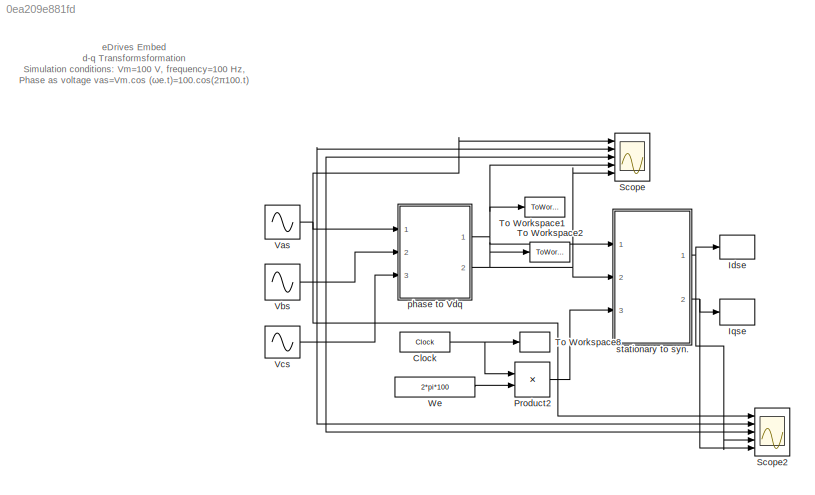
MODEL slx_0ea209e881fd
KIND model
CONFIG AbsTol = 1e-6
CONFIG EnableMultiTasking = off
CONFIG FixedStep = auto
CONFIG MaxStep = auto
CONFIG MinStep = auto
CONFIG RelTol = 1e-4
CONFIG SampleTimeConstraint = Unconstrained
CONFIG SolverName = ode45
CONFIG StartTime = 0.0
CONFIG StopTime = 0.015
BLOCK [Clock] Clock
  DisplayTime = on
BLOCK [ToWorkspace] Idse
  MaxDataPoints = inf
  Ports = [1]
  SampleTime = -1
  VariableName = Vde
BLOCK [ToWorkspace] Iqse
  MaxDataPoints = inf
  Ports = [1]
  SampleTime = -1
  VariableName = Vqe
BLOCK [Product] Product2
  InputSameDT = on
  OutDataTypeStr = Inherit: Same as first input
  Ports = [2, 1]
  SaturateOnIntegerOverflow = on
BLOCK [Scope] Scope
  Floating = off
  NumInputPorts = 5
  Ports = [5]
  ScopeSpecificationString = Simulink.scopes.TimeScopeBlockCfg('CurrentConfiguration', extmgr.ConfigurationSet(extmgr.Configuration('Core','General UI',true),extmgr.Configuration('Core','Source UI',true),extmgr.Configuration('Sources','WiredSimulink',true),extmgr.Configuration('Visuals','Time Domain',true,'SerializedDisplays',{struct('MinYLimReal','-176.7767','MaxYLimReal','176.7767','YLabelReal','','MinYLimMag',' 0.00000','M...<+1431ch>
BLOCK [Scope] Scope2
  Floating = off
  NumInputPorts = 5
  Ports = [5]
  ScopeSpecificationString = Simulink.scopes.TimeScopeBlockCfg('CurrentConfiguration', extmgr.ConfigurationSet(extmgr.Configuration('Core','General UI',true),extmgr.Configuration('Core','Source UI',true),extmgr.Configuration('Sources','WiredSimulink',true,'DataLoggingVariableName','ScopeData2'),extmgr.Configuration('Visuals','Time Domain',true,'SerializedDisplays',{struct('MinYLimReal','-176.7767','MaxYLimReal','176.7767','YL...<+1482ch>
BLOCK [ToWorkspace] To Workspace1
  MaxDataPoints = inf
  Ports = [1]
  SampleTime = -1
  VariableName = Vds
BLOCK [ToWorkspace] To Workspace2
  MaxDataPoints = inf
  Ports = [1]
  SampleTime = -1
  VariableName = Vqs
BLOCK [ToWorkspace] To Workspace8
  MaxDataPoints = inf
  Ports = [1]
  SampleTime = -1
  VariableName = t
BLOCK [Sin] Vas
  Amplitude = sqrt(2)*100
  Frequency = 2*pi*100
  Phase = pi/2
  Ports = [0, 1]
  SampleTime = 0
BLOCK [Sin] Vbs
  Amplitude = sqrt(2)*100
  Frequency = 2*pi*100
  Phase = -2/3*pi+pi/2
  Ports = [0, 1]
  SampleTime = 0
BLOCK [Sin] Vcs
  Amplitude = sqrt(2)*100
  Frequency = 2*pi*100
  Phase = pi/2+2/3*pi
  Ports = [0, 1]
  SampleTime = 0
BLOCK [Constant] We
  Value = 2*pi*100
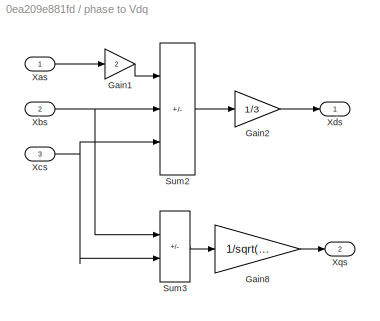
BLOCK [SubSystem] phase to Vdq
  Ports = [3, 2]
  RequestExecContextInheritance = off
BLOCK [Gain] phase to Vdq/Gain1
  Gain = 2
  OutDataTypeStr = Inherit: Same as input
  ParamDataTypeStr = Inherit: Same as input
  SaturateOnIntegerOverflow = on
BLOCK [Gain] phase to Vdq/Gain2
  Gain = 1/3
  OutDataTypeStr = Inherit: Same as input
  ParamDataTypeStr = Inherit: Same as input
  SaturateOnIntegerOverflow = on
BLOCK [Gain] phase to Vdq/Gain8
  Gain = 1/sqrt(3)
  OutDataTypeStr = Inherit: Same as input
  ParamDataTypeStr = Inherit: Same as input
  SaturateOnIntegerOverflow = on
BLOCK [Sum] phase to Vdq/Sum2
  IconShape = rectangular
  InputSameDT = on
  Inputs = +--
  OutDataTypeStr = Inherit: Same as first input
  Ports = [3, 1]
  SaturateOnIntegerOverflow = on
BLOCK [Sum] phase to Vdq/Sum3
  IconShape = rectangular
  InputSameDT = on
  Inputs = +-
  OutDataTypeStr = Inherit: Same as first input
  Ports = [2, 1]
  SaturateOnIntegerOverflow = on
BLOCK [Inport] phase to Vdq/Xas
BLOCK [Inport] phase to Vdq/Xbs
  Port = 2
BLOCK [Inport] phase to Vdq/Xcs
  Port = 3
BLOCK [Outport] phase to Vdq/Xds
  InitialOutput = 0
BLOCK [Outport] phase to Vdq/Xqs
  InitialOutput = 0
  Port = 2
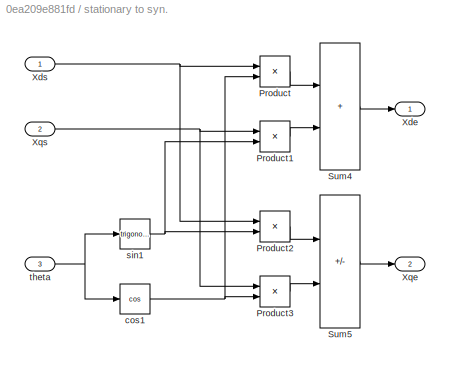
BLOCK [SubSystem] stationary to syn.
  Ports = [3, 2]
  RequestExecContextInheritance = off
BLOCK [Product] stationary to syn./Product
  InputSameDT = on
  OutDataTypeStr = Inherit: Same as first input
  Ports = [2, 1]
  SaturateOnIntegerOverflow = on
BLOCK [Product] stationary to syn./Product1
  InputSameDT = on
  OutDataTypeStr = Inherit: Same as first input
  Ports = [2, 1]
  SaturateOnIntegerOverflow = on
BLOCK [Product] stationary to syn./Product2
  InputSameDT = on
  OutDataTypeStr = Inherit: Same as first input
  Ports = [2, 1]
  SaturateOnIntegerOverflow = on
BLOCK [Product] stationary to syn./Product3
  InputSameDT = on
  OutDataTypeStr = Inherit: Same as first input
  Ports = [2, 1]
  SaturateOnIntegerOverflow = on
BLOCK [Sum] stationary to syn./Sum4
  IconShape = rectangular
  InputSameDT = on
  OutDataTypeStr = Inherit: Same as first input
  Ports = [2, 1]
  SaturateOnIntegerOverflow = on
BLOCK [Sum] stationary to syn./Sum5
  IconShape = rectangular
  InputSameDT = on
  Inputs = -+
  OutDataTypeStr = Inherit: Same as first input
  Ports = [2, 1]
  SaturateOnIntegerOverflow = on
BLOCK [Outport] stationary to syn./Xde
  InitialOutput = 0
BLOCK [Inport] stationary to syn./Xds
BLOCK [Outport] stationary to syn./Xqe
  InitialOutput = 0
  Port = 2
BLOCK [Inport] stationary to syn./Xqs
  Port = 2
BLOCK [Trigonometry] stationary to syn./cos1
  Operator = cos
  Ports = [1, 1]
BLOCK [Trigonometry] stationary to syn./sin1
  NameLocation = top
  Ports = [1, 1]
BLOCK [Inport] stationary to syn./theta
  Port = 3
ANNOTATION (root): eDrives Embed d-q Transformsformation Simulation conditions: Vm=100 V, frequency=100 Hz, Phase as voltage vas=Vm.cos (ωe.t)=100.cos(2π100.t)
NET Clock:1 -> Product2:1, To Workspace8:1
LINE Product2:1 -> stationary to syn.:3
NET Vas:1 -> Scope2:1, Scope:1, phase to Vdq:1
NET Vbs:1 -> Scope2:2, Scope:2, phase to Vdq:2
NET Vcs:1 -> Scope2:3, Scope:3, phase to Vdq:3
LINE We:1 -> Product2:2
LINE phase to Vdq/Gain1:1 -> phase to Vdq/Sum2:1
LINE phase to Vdq/Gain2:1 -> phase to Vdq/Xds:1
LINE phase to Vdq/Gain8:1 -> phase to Vdq/Xqs:1
LINE phase to Vdq/Sum2:1 -> phase to Vdq/Gain2:1
LINE phase to Vdq/Sum3:1 -> phase to Vdq/Gain8:1
LINE phase to Vdq/Xas:1 -> phase to Vdq/Gain1:1
NET phase to Vdq/Xbs:1 -> phase to Vdq/Sum2:2, phase to Vdq/Sum3:1
NET phase to Vdq/Xcs:1 -> phase to Vdq/Sum2:3, phase to Vdq/Sum3:2
NET phase to Vdq:1 -> Scope:4, To Workspace1:1, stationary to syn.:1
NET phase to Vdq:2 -> Scope:5, To Workspace2:1, stationary to syn.:2
LINE stationary to syn./Product1:1 -> stationary to syn./Sum4:2
LINE stationary to syn./Product2:1 -> stationary to syn./Sum5:1
LINE stationary to syn./Product3:1 -> stationary to syn./Sum5:2
LINE stationary to syn./Product:1 -> stationary to syn./Sum4:1
LINE stationary to syn./Sum4:1 -> stationary to syn./Xde:1
LINE stationary to syn./Sum5:1 -> stationary to syn./Xqe:1
NET stationary to syn./Xds:1 -> stationary to syn./Product2:1, stationary to syn./Product:1
NET stationary to syn./Xqs:1 -> stationary to syn./Product1:1, stationary to syn./Product3:1
NET stationary to syn./cos1:1 -> stationary to syn./Product3:2, stationary to syn./Product:2
NET stationary to syn./sin1:1 -> stationary to syn./Product1:2, stationary to syn./Product2:2
NET stationary to syn./theta:1 -> stationary to syn./cos1:1, stationary to syn./sin1:1
NET stationary to syn.:1 -> Idse:1, Scope2:4
NET stationary to syn.:2 -> Iqse:1, Scope2:5
note: NET lines group one-source signal fan-out (src -> all destinations, sorted); 1:1 wires keep LINE
